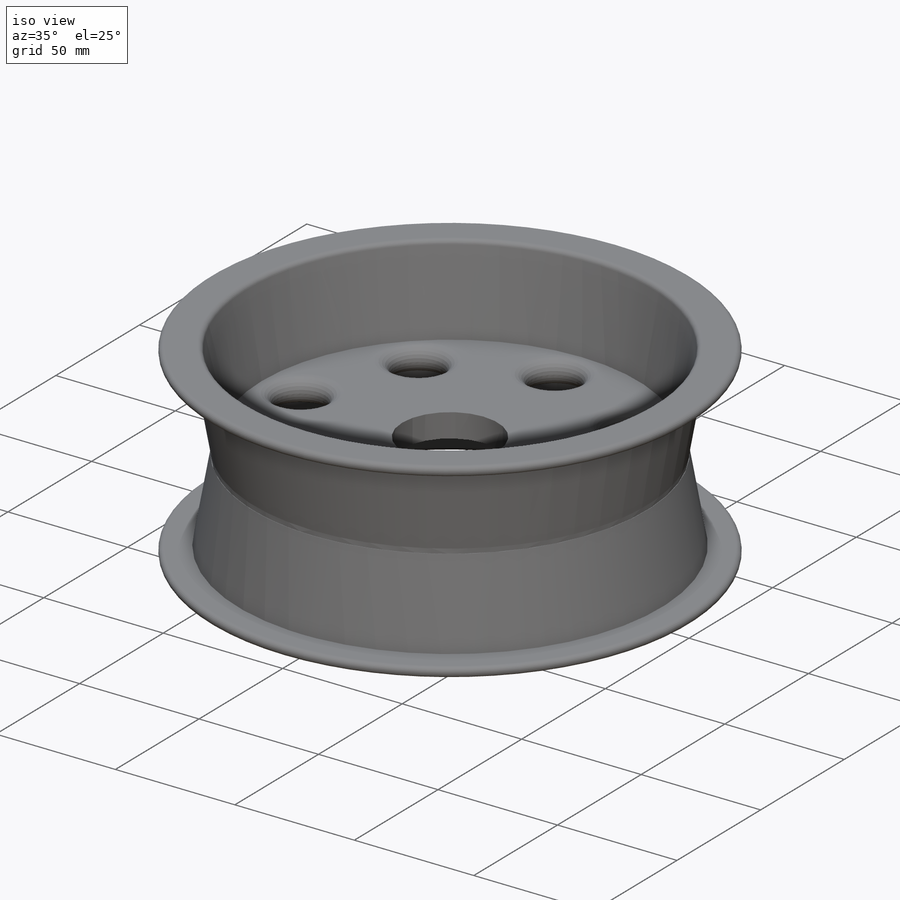
[diagram: iso view]
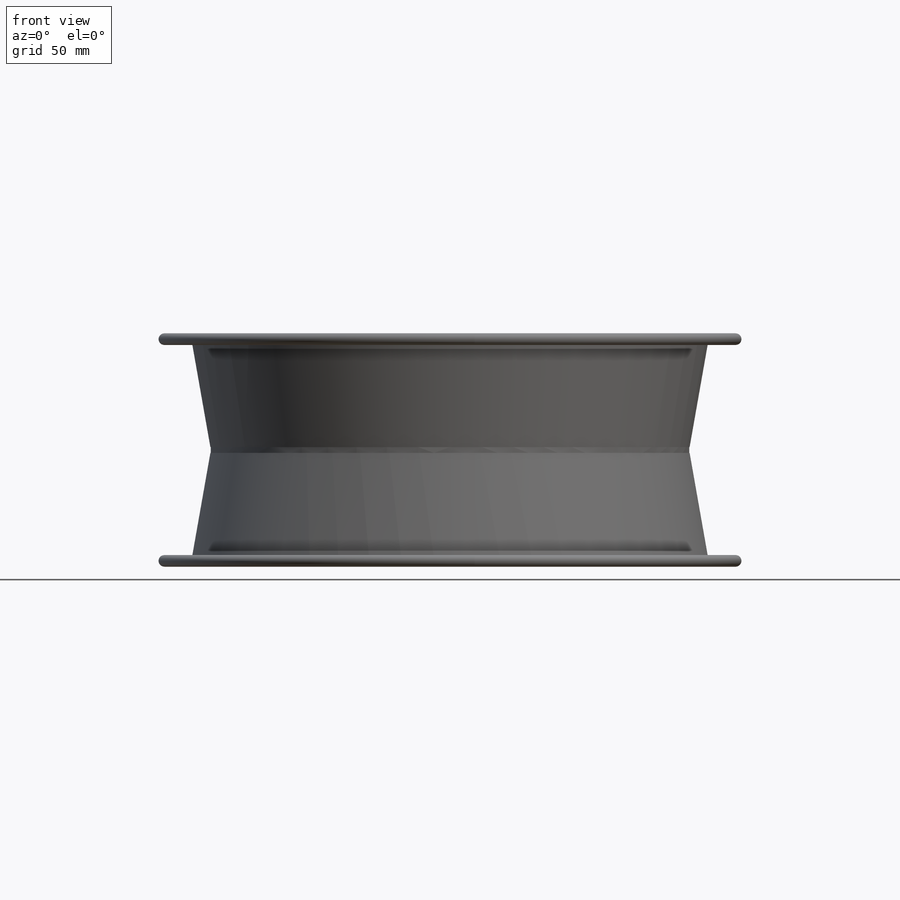
[diagram: front view]
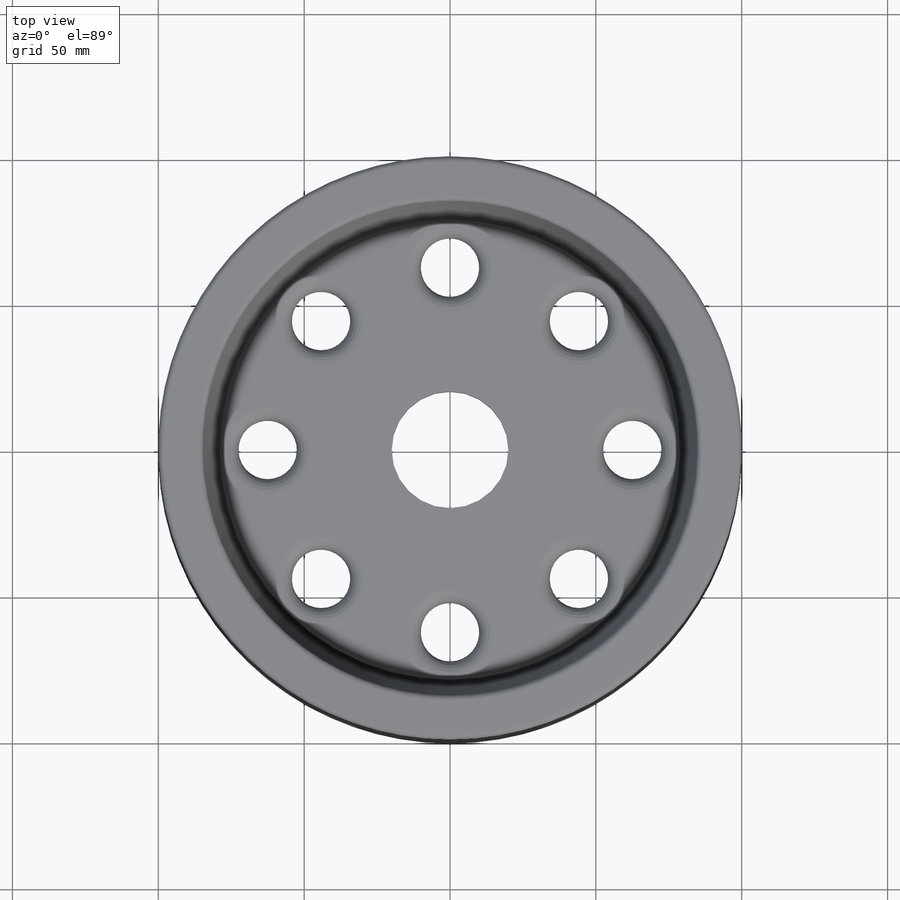
[diagram: top view]
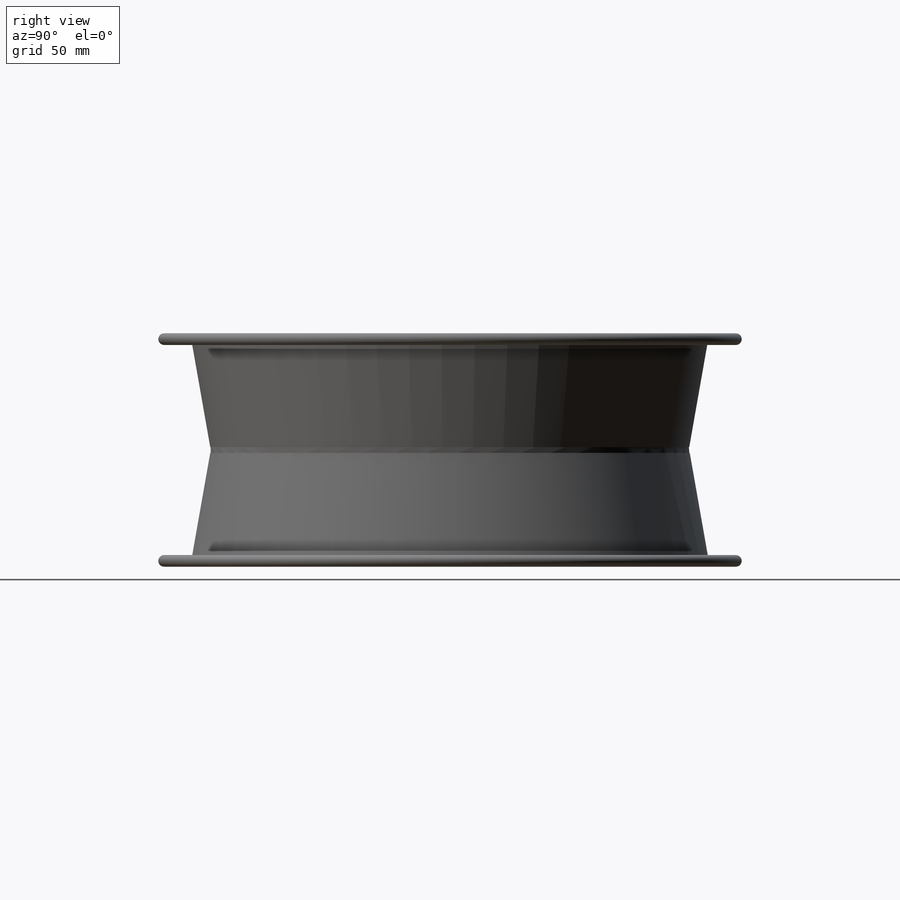
[diagram: right view]
SOLIDWORKS PART (.sldprt)
format: sldprt  version: not decoded by parser v0  size: 444,928 bytes
history: native  units: mm
features: sketch x4, plane x3, fillet x3, extrude x2, cut_extrude x2, material x1, shell x1 (+13 scaffold rows collapsed)
feature tree (29):
  scaffold x13  (default folders/planes/origin — collapsed)
  material  "1.7131 (16MnCr5)"
  plane  "前视基准面"
  plane  "上视基准面"
  plane  "右视基准面"
  sketch  "草图1"  dims[D1=200.0mm D2=40.0mm D3=125.0mm D4=20.0mm D5=8.0]
  extrude  "凸台-拉伸3"  Depth=80mm
  sketch  "草图6"  dims[D1=170.0mm]
  cut_extrude  "切除-拉伸3"  Depth=35mm
  sketch  "草图7"  dims[D1=170.0mm]
  cut_extrude  "切除-拉伸4"  Depth=35mm
  shell  "抽壳2"  Thickness=4mm
  sketch  "草图9"
  extrude  "凸台-拉伸4"  [1 undecoded]
  fillet  "圆角4"  Radius=2mm
  fillet  "圆角5"  Radius=5mm
  fillet  "圆角6"  Radius=2mm
decode coverage: 10 of 12 modeling features carry decoded parameters
note: 1 parameter value undecoded
note: suppression state not decoded; provenance and decode notes live in map.json
